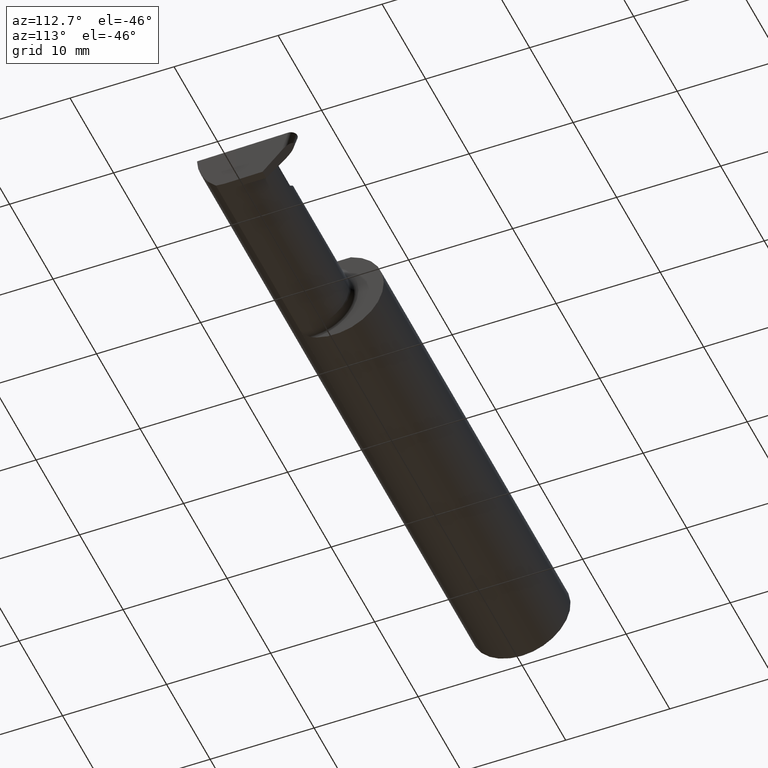
[diagram: clean part render]
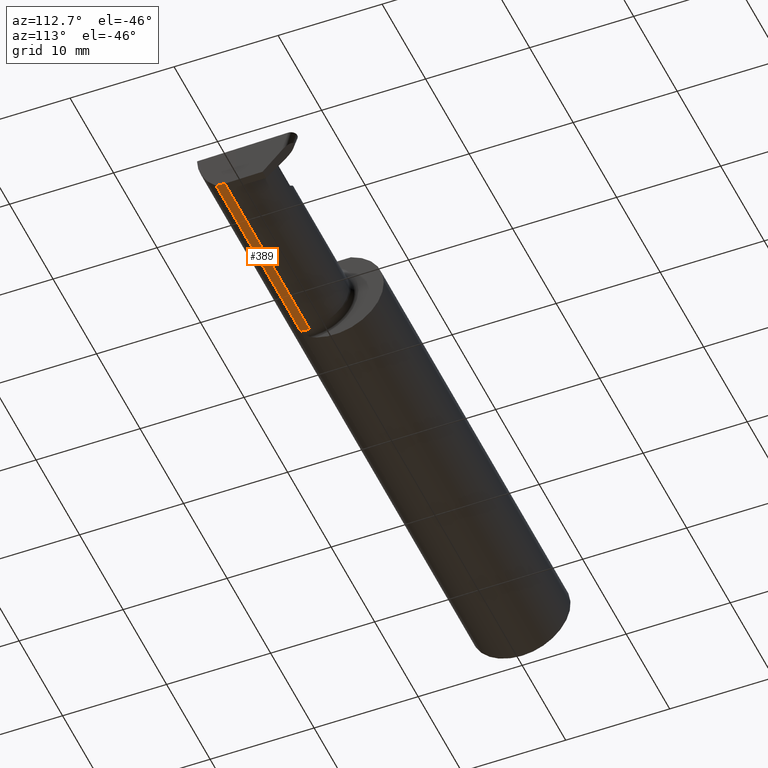
[diagram: same view with one face highlighted and labeled with its STEP entity id]
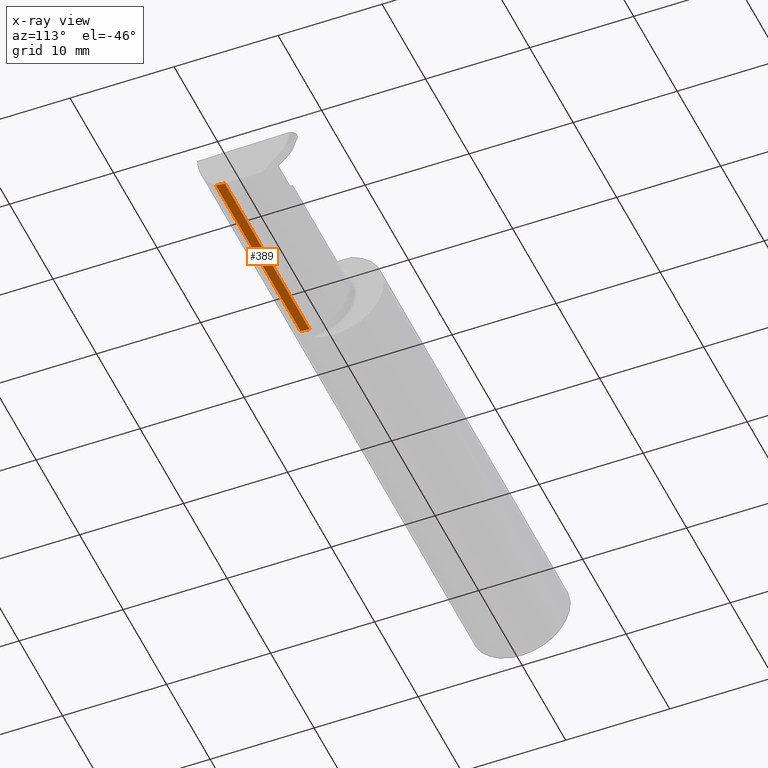
[diagram: x-ray of the same camera — body ghosted, the highlighted face saturated]
A machine part, auxiliary view. The second image highlights one B-rep face of the part: STEP entity #389.
The next image is the same camera in x-ray: the body ghosted, the highlighted face saturated — about 0% of this face is hidden behind the body in this view.
In plain terms, the highlighted cylindrical surface (partial cylindrical patch) has radius 3.81 mm, axis along (-1, -0, -0).
Its self-contained STEP definition (entity closure, byte-faithful):
#4 = ORIENTED_EDGE ( 'NONE', *, *, #357, .T. ) ;
#5 = EDGE_CURVE ( 'NONE', #634, #728, #265, .T. ) ;
#20 = VECTOR ( 'NONE', #766, 39.37007874015748143 ) ;
#119 = ORIENTED_EDGE ( 'NONE', *, *, #5, .F. ) ;
#121 = CARTESIAN_POINT ( 'NONE',  ( 2.088979999999999837, -0.1172600179964006784, -0.1461167706989303650 ) ) ;
#123 = VECTOR ( 'NONE', #259, 39.37007874015748143 ) ;
#128 = EDGE_CURVE ( 'NONE', #728, #400, #647, .T. ) ;
#137 = LINE ( 'NONE', #121, #123 ) ;
#142 = DIRECTION ( 'NONE',  ( -1.000000000000000000, -0.000000000000000000, -0.000000000000000000 ) ) ;
#175 = VERTEX_POINT ( 'NONE', #729 ) ;
#196 = DIRECTION ( 'NONE',  ( -1.000000000000000000, -0.000000000000000000, -0.000000000000000000 ) ) ;
#228 = DIRECTION ( 'NONE',  ( 0.000000000000000000, 0.000000000000000000, 1.000000000000000000 ) ) ;
#249 = CARTESIAN_POINT ( 'NONE',  ( 2.490145048687840479, -0.1061291577212409437, -0.1486999626928446061 ) ) ;
#259 = DIRECTION ( 'NONE',  ( -1.000000000000000000, -0.000000000000000000, -0.000000000000000000 ) ) ;
#265 =( BOUNDED_CURVE ( )  B_SPLINE_CURVE ( 3, ( #701, #249, #371, #499 ),
 .UNSPECIFIED., .F., .F. ) 
 B_SPLINE_CURVE_WITH_KNOTS ( ( 4, 4 ),
 ( 0.2354267821558756746, 0.4634648172053189019 ),
 .UNSPECIFIED. ) 
 CURVE ( )  GEOMETRIC_REPRESENTATION_ITEM ( )  RATIONAL_B_SPLINE_CURVE ( ( 1.000000000000000000, 0.9956712472009929815, 0.9956712472009929815, 1.000000000000000000 ) ) 
 REPRESENTATION_ITEM ( '' )  );
#311 = ORIENTED_EDGE ( 'NONE', *, *, #571, .F. ) ;
#316 = CARTESIAN_POINT ( 'NONE',  ( 2.490497255146305822, -0.08335000000000014619, -0.1500000000000000500 ) ) ;
#322 = CIRCLE ( 'NONE', #683, 0.1499999999999999944 ) ;
#357 = EDGE_CURVE ( 'NONE', #634, #590, #137, .T. ) ;
#371 = CARTESIAN_POINT ( 'NONE',  ( 2.490297801769516539, -0.09477667630339427218, -0.1499999999999999944 ) ) ;
#382 = CARTESIAN_POINT ( 'NONE',  ( 2.460115337567889249, -0.08334999999999999354, -0.1500000000000000222 ) ) ;
#389 = ADVANCED_FACE ( 'NONE', ( #560 ), #810, .T. ) ;
#396 = CARTESIAN_POINT ( 'NONE',  ( 1.699999999999999956, -0.08334999999999997966, -0.1499999999999999944 ) ) ;
#400 = VERTEX_POINT ( 'NONE', #382 ) ;
#408 = CARTESIAN_POINT ( 'NONE',  ( 2.733184360054361939, -0.08335000000000014619, -0.1500000000000000500 ) ) ;
#433 = VECTOR ( 'NONE', #142, 39.37007874015748143 ) ;
#439 = EDGE_LOOP ( 'NONE', ( #311, #621, #119, #4, #514 ) ) ;
#445 = DIRECTION ( 'NONE',  ( 0.000000000000000000, 0.000000000000000000, 1.000000000000000000 ) ) ;
#499 = CARTESIAN_POINT ( 'NONE',  ( 2.490497255146305822, -0.08335000000000014619, -0.1500000000000000500 ) ) ;
#501 = AXIS2_PLACEMENT_3D ( 'NONE', #754, #196, #445 ) ;
#514 = ORIENTED_EDGE ( 'NONE', *, *, #682, .F. ) ;
#526 = CARTESIAN_POINT ( 'NONE',  ( 2.490040979592266890, -0.1172600179964006784, -0.1461167706989303650 ) ) ;
#560 = FACE_OUTER_BOUND ( 'NONE', #439, .T. ) ;
#571 = EDGE_CURVE ( 'NONE', #400, #175, #797, .T. ) ;
#590 = VERTEX_POINT ( 'NONE', #771 ) ;
#621 = ORIENTED_EDGE ( 'NONE', *, *, #128, .F. ) ;
#634 = VERTEX_POINT ( 'NONE', #526 ) ;
#647 = LINE ( 'NONE', #408, #433 ) ;
#664 = CARTESIAN_POINT ( 'NONE',  ( 1.724999999999999867, -0.08334999999999999354, 0.000000000000000000 ) ) ;
#682 = EDGE_CURVE ( 'NONE', #175, #590, #322, .T. ) ;
#683 = AXIS2_PLACEMENT_3D ( 'NONE', #664, #779, #228 ) ;
#701 = CARTESIAN_POINT ( 'NONE',  ( 2.490040979592266890, -0.1172600179964006784, -0.1461167706989303650 ) ) ;
#728 = VERTEX_POINT ( 'NONE', #316 ) ;
#729 = CARTESIAN_POINT ( 'NONE',  ( 1.724999999999999867, -0.08334999999999997966, -0.1499999999999999944 ) ) ;
#754 = CARTESIAN_POINT ( 'NONE',  ( 1.699999999999999956, -0.08334999999999999354, 0.000000000000000000 ) ) ;
#766 = DIRECTION ( 'NONE',  ( -1.000000000000000000, -0.000000000000000000, -0.000000000000000000 ) ) ;
#771 = CARTESIAN_POINT ( 'NONE',  ( 1.724999999999999867, -0.1172600179964006784, -0.1461167706989303650 ) ) ;
#779 = DIRECTION ( 'NONE',  ( -1.000000000000000000, -0.000000000000000000, -0.000000000000000000 ) ) ;
#797 = LINE ( 'NONE', #396, #20 ) ;
#810 = CYLINDRICAL_SURFACE ( 'NONE', #501, 0.1499999999999999944 ) ;